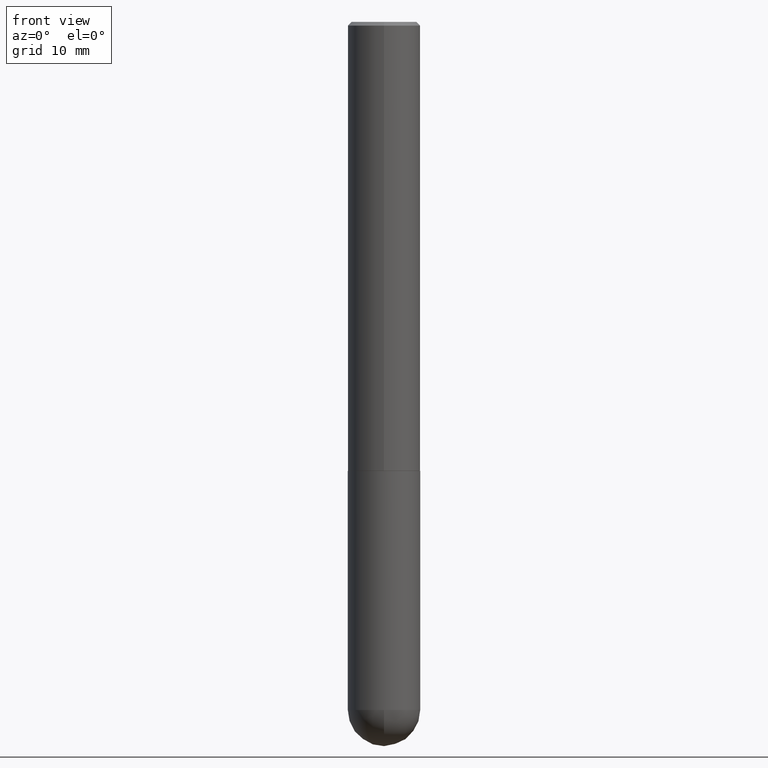
[diagram: clean part render]
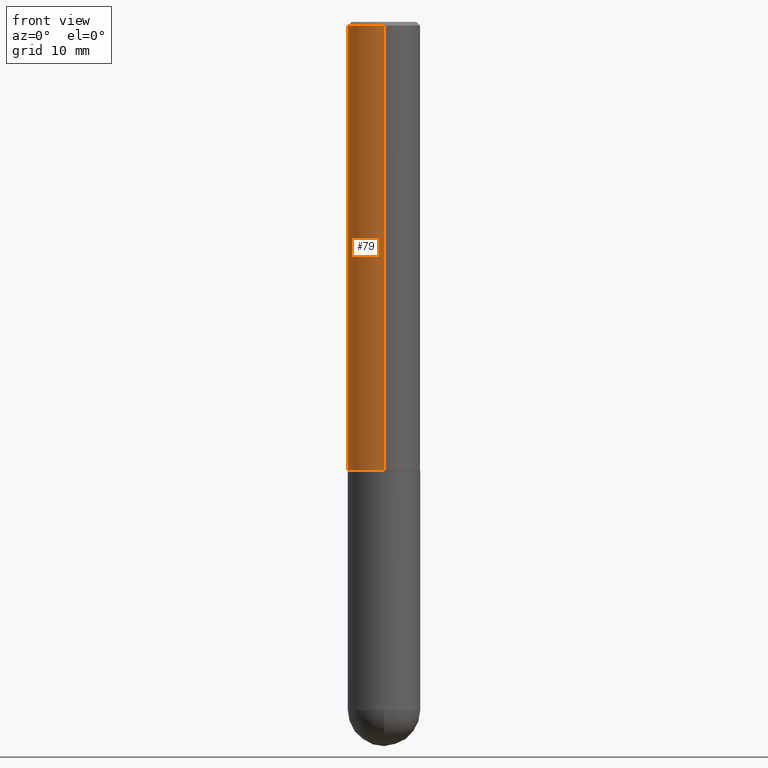
[diagram: same view with one face highlighted and labeled with its STEP entity id]
A machine part, front view. The second image highlights one B-rep face of the part: STEP entity #79.
In plain terms, the highlighted cylindrical surface (edge-blend (fillet) strip) has radius 5 mm, axis along (-0, 0, 1).
Its self-contained STEP definition (entity closure, byte-faithful):
#19 = DIRECTION ( 'NONE',  ( -2.444480225679141495E-29, 3.492897042394238758E-15, 1.000000000000000000 ) ) ;
#24 = CIRCLE ( 'NONE', #67, 0.1968500000000003303 ) ;
#26 = CYLINDRICAL_SURFACE ( 'NONE', #40, 0.1968500000000001915 ) ;
#40 = AXIS2_PLACEMENT_3D ( 'NONE', #291, #263, #254 ) ;
#41 = CARTESIAN_POINT ( 'NONE',  ( 1.398703375343789145E-15, 0.1968499999999918093, -2.439900000000000624 ) ) ;
#67 = AXIS2_PLACEMENT_3D ( 'NONE', #233, #368, #73 ) ;
#72 = DIRECTION ( 'NONE',  ( -2.444480225679141495E-29, 3.492897042394238758E-15, 1.000000000000000000 ) ) ;
#73 = DIRECTION ( 'NONE',  ( -6.982962677686265133E-15, -1.000000000000000000, 4.163344669033668535E-15 ) ) ;
#74 = CARTESIAN_POINT ( 'NONE',  ( -1.350489030861325626E-15, -0.1968500000000001082, -0.01999999999999935510 ) ) ;
#79 = ADVANCED_FACE ( 'NONE', ( #189 ), #26, .T. ) ;
#84 = ORIENTED_EDGE ( 'NONE', *, *, #276, .T. ) ;
#126 = ORIENTED_EDGE ( 'NONE', *, *, #183, .T. ) ;
#150 = VERTEX_POINT ( 'NONE', #74 ) ;
#155 = CARTESIAN_POINT ( 'NONE',  ( -1.374596203102484021E-15, -0.1968500000000088512, -2.439899999999998847 ) ) ;
#157 = VERTEX_POINT ( 'NONE', #306 ) ;
#169 = LINE ( 'NONE', #300, #266 ) ;
#172 = CIRCLE ( 'NONE', #229, 0.1968500000000000527 ) ;
#183 = EDGE_CURVE ( 'NONE', #337, #150, #369, .T. ) ;
#189 = FACE_OUTER_BOUND ( 'NONE', #277, .T. ) ;
#213 = VERTEX_POINT ( 'NONE', #41 ) ;
#229 = AXIS2_PLACEMENT_3D ( 'NONE', #338, #19, #379 ) ;
#233 = CARTESIAN_POINT ( 'NONE',  ( 5.964287302634537555E-29, -8.522319493737701952E-15, -2.439899999999999736 ) ) ;
#240 = ORIENTED_EDGE ( 'NONE', *, *, #282, .F. ) ;
#249 = ORIENTED_EDGE ( 'NONE', *, *, #386, .F. ) ;
#254 = DIRECTION ( 'NONE',  ( -6.982962677686265133E-15, -1.000000000000000000, 3.492897042394238758E-15 ) ) ;
#263 = DIRECTION ( 'NONE',  ( -2.444480225679141495E-29, 3.492897042394238758E-15, 1.000000000000000000 ) ) ;
#266 = VECTOR ( 'NONE', #298, 39.37007874015748143 ) ;
#276 = EDGE_CURVE ( 'NONE', #213, #337, #24, .T. ) ;
#277 = EDGE_LOOP ( 'NONE', ( #240, #84, #126, #249 ) ) ;
#282 = EDGE_CURVE ( 'NONE', #213, #157, #169, .T. ) ;
#291 = CARTESIAN_POINT ( 'NONE',  ( 0.000000000000000000, 0.000000000000000000, 0.000000000000000000 ) ) ;
#298 = DIRECTION ( 'NONE',  ( -2.444480225679141495E-29, 3.492897042394238758E-15, 1.000000000000000000 ) ) ;
#300 = CARTESIAN_POINT ( 'NONE',  ( 1.398703375343758182E-15, 0.1968500000000001915, -6.875767827953065398E-16 ) ) ;
#306 = CARTESIAN_POINT ( 'NONE',  ( 1.374596203102542200E-15, 0.1968499999999999694, -0.02000000000000072900 ) ) ;
#337 = VERTEX_POINT ( 'NONE', #155 ) ;
#338 = CARTESIAN_POINT ( 'NONE',  ( 4.888960451358293429E-31, -6.985794084788491174E-17, -0.02000000000000004205 ) ) ;
#366 = VECTOR ( 'NONE', #72, 39.37007874015748143 ) ;
#368 = DIRECTION ( 'NONE',  ( -2.444480225679141495E-29, 3.492897042394238758E-15, 1.000000000000000000 ) ) ;
#369 = LINE ( 'NONE', #399, #366 ) ;
#379 = DIRECTION ( 'NONE',  ( -6.982962677686265133E-15, -1.000000000000000000, 3.491137977679279029E-15 ) ) ;
#386 = EDGE_CURVE ( 'NONE', #157, #150, #172, .T. ) ;
#399 = CARTESIAN_POINT ( 'NONE',  ( -1.374596203102542594E-15, -0.1968500000000001915, 6.875767827953065398E-16 ) ) ;